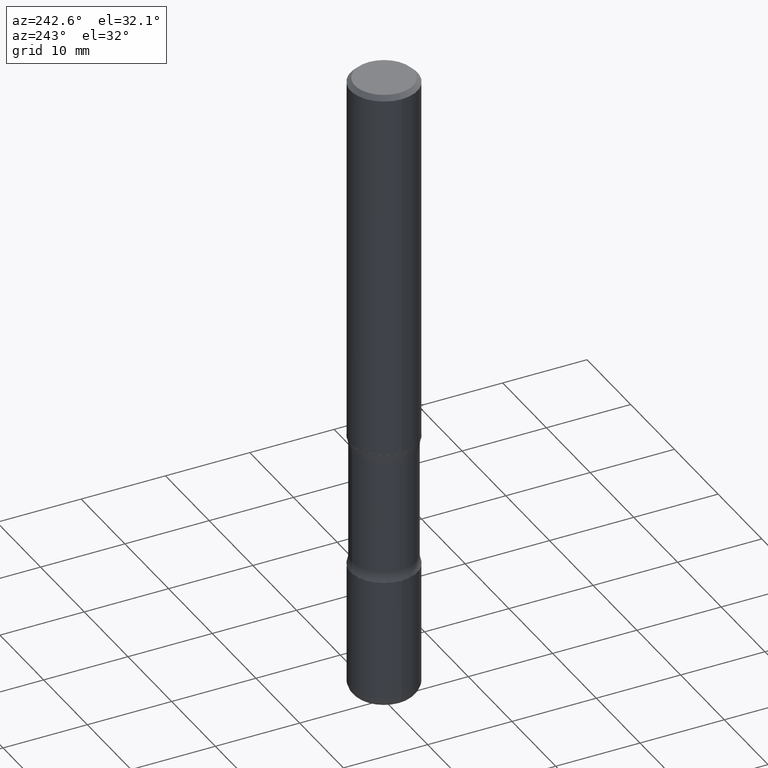
[diagram: clean part render]
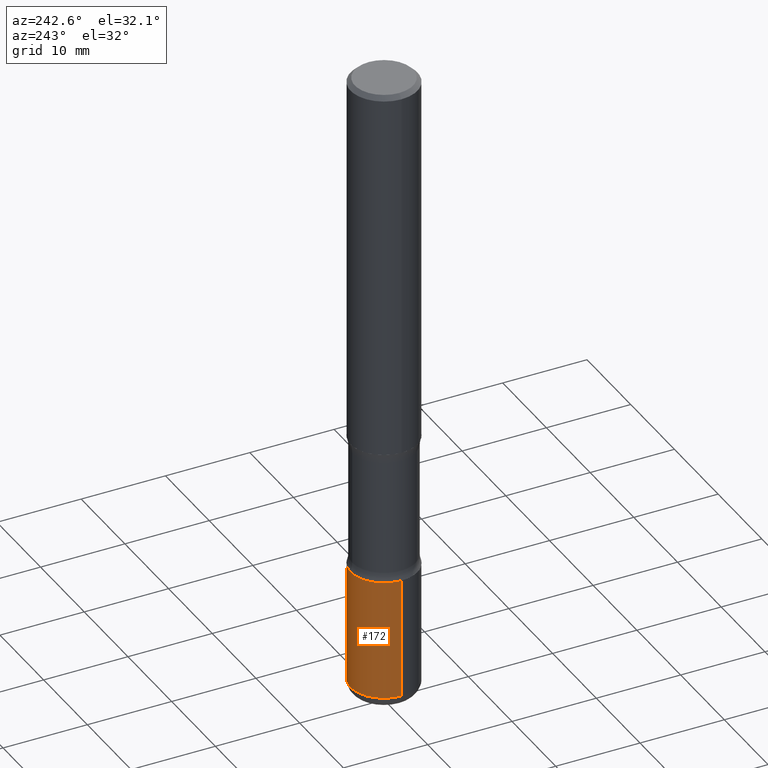
[diagram: same view with one face highlighted and labeled with its STEP entity id]
A machine part, auxiliary view. The second image highlights one B-rep face of the part: STEP entity #172.
In plain terms, the highlighted cylindrical surface (partial cylindrical patch) has radius 3.9688 mm, axis along (-0, 0, 1).
Its self-contained STEP definition (entity closure, byte-faithful):
#1 = LINE ( 'NONE', #251, #518 ) ;
#8 = DIRECTION ( 'NONE',  ( 1.000000000000000000, -6.982962677686268288E-15, 0.000000000000000000 ) ) ;
#61 = CARTESIAN_POINT ( 'NONE',  ( 7.189678290184302760E-29, -1.026495513619885119E-14, -2.940000000000000835 ) ) ;
#88 = AXIS2_PLACEMENT_3D ( 'NONE', #61, #428, #8 ) ;
#104 = DIRECTION ( 'NONE',  ( 1.000000000000000000, -6.982962677686266711E-15, 4.876176775795936353E-29 ) ) ;
#123 = CARTESIAN_POINT ( 'NONE',  ( 5.807988414689700538E-29, -8.292268179752471696E-15, -2.375000000000000444 ) ) ;
#160 = CIRCLE ( 'NONE', #470, 0.1562500000000001110 ) ;
#169 = LINE ( 'NONE', #511, #176 ) ;
#172 = ADVANCED_FACE ( 'NONE', ( #356 ), #430, .T. ) ;
#176 = VECTOR ( 'NONE', #336, 39.37007874015748143 ) ;
#186 = CARTESIAN_POINT ( 'NONE',  ( 0.000000000000000000, 0.000000000000000000, 0.000000000000000000 ) ) ;
#187 = VERTEX_POINT ( 'NONE', #525 ) ;
#198 = CARTESIAN_POINT ( 'NONE',  ( 0.1562500000000001110, -9.383356098140953236E-15, -2.375000000000000444 ) ) ;
#250 = ORIENTED_EDGE ( 'NONE', *, *, #303, .F. ) ;
#251 = CARTESIAN_POINT ( 'NONE',  ( -0.1562500000000001388, 1.110223024625157526E-15, -7.685836078523296765E-30 ) ) ;
#295 = EDGE_LOOP ( 'NONE', ( #483, #512, #250, #358 ) ) ;
#297 = VERTEX_POINT ( 'NONE', #198 ) ;
#303 = EDGE_CURVE ( 'NONE', #297, #388, #160, .T. ) ;
#306 = DIRECTION ( 'NONE',  ( -2.445468806185136597E-29, 3.491481338843145583E-15, 1.000000000000000000 ) ) ;
#331 = EDGE_CURVE ( 'NONE', #187, #297, #169, .T. ) ;
#336 = DIRECTION ( 'NONE',  ( -2.445468806185136877E-29, 3.491481338843145188E-15, 1.000000000000000000 ) ) ;
#340 = DIRECTION ( 'NONE',  ( -2.445468806185136877E-29, 3.491481338843145188E-15, 1.000000000000000000 ) ) ;
#349 = CARTESIAN_POINT ( 'NONE',  ( -0.1562500000000001388, -9.154732111573694652E-15, -2.940000000000000835 ) ) ;
#356 = FACE_OUTER_BOUND ( 'NONE', #295, .T. ) ;
#358 = ORIENTED_EDGE ( 'NONE', *, *, #331, .F. ) ;
#370 = DIRECTION ( 'NONE',  ( 1.000000000000000000, -6.982962677686270655E-15, 0.000000000000000000 ) ) ;
#378 = CARTESIAN_POINT ( 'NONE',  ( -0.1562500000000001110, -8.168388633350503326E-15, -2.375000000000000444 ) ) ;
#388 = VERTEX_POINT ( 'NONE', #378 ) ;
#393 = EDGE_CURVE ( 'NONE', #451, #388, #1, .T. ) ;
#396 = AXIS2_PLACEMENT_3D ( 'NONE', #186, #306, #104 ) ;
#428 = DIRECTION ( 'NONE',  ( -2.445468806185136597E-29, 3.491481338843145583E-15, 1.000000000000000000 ) ) ;
#430 = CYLINDRICAL_SURFACE ( 'NONE', #396, 0.1562500000000001388 ) ;
#451 = VERTEX_POINT ( 'NONE', #349 ) ;
#470 = AXIS2_PLACEMENT_3D ( 'NONE', #123, #541, #370 ) ;
#480 = EDGE_CURVE ( 'NONE', #187, #451, #536, .T. ) ;
#483 = ORIENTED_EDGE ( 'NONE', *, *, #480, .T. ) ;
#511 = CARTESIAN_POINT ( 'NONE',  ( 0.1562500000000001388, -1.091087918388480160E-15, 7.619026212181157383E-30 ) ) ;
#512 = ORIENTED_EDGE ( 'NONE', *, *, #393, .T. ) ;
#518 = VECTOR ( 'NONE', #340, 39.37007874015748143 ) ;
#525 = CARTESIAN_POINT ( 'NONE',  ( 0.1562500000000001388, -1.135604305458733115E-14, -2.940000000000000835 ) ) ;
#536 = CIRCLE ( 'NONE', #88, 0.1562500000000001665 ) ;
#541 = DIRECTION ( 'NONE',  ( -2.445468806185136597E-29, 3.491481338843145583E-15, 1.000000000000000000 ) ) ;